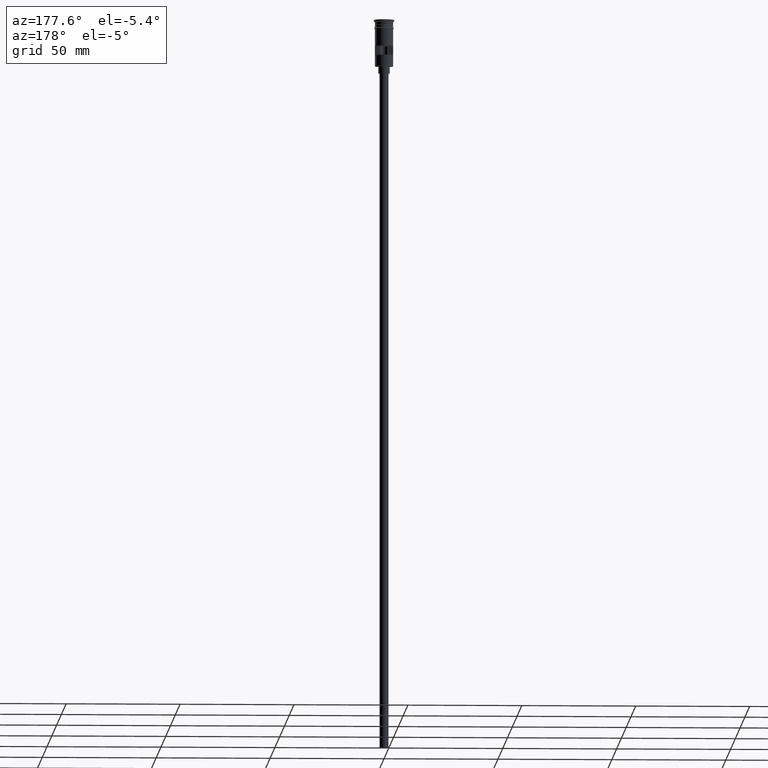
[diagram: clean part render]
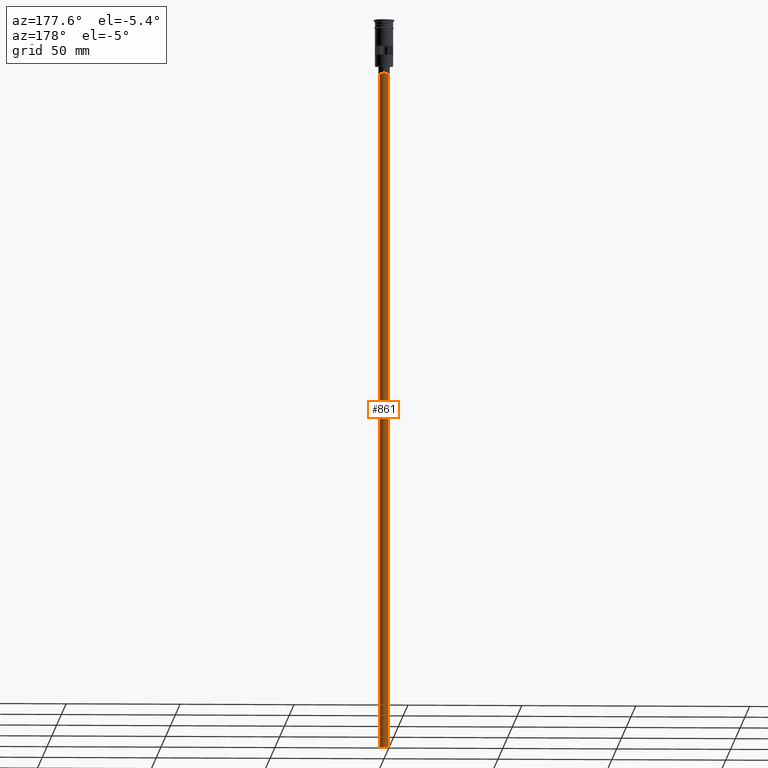
[diagram: same view with one face highlighted and labeled with its STEP entity id]
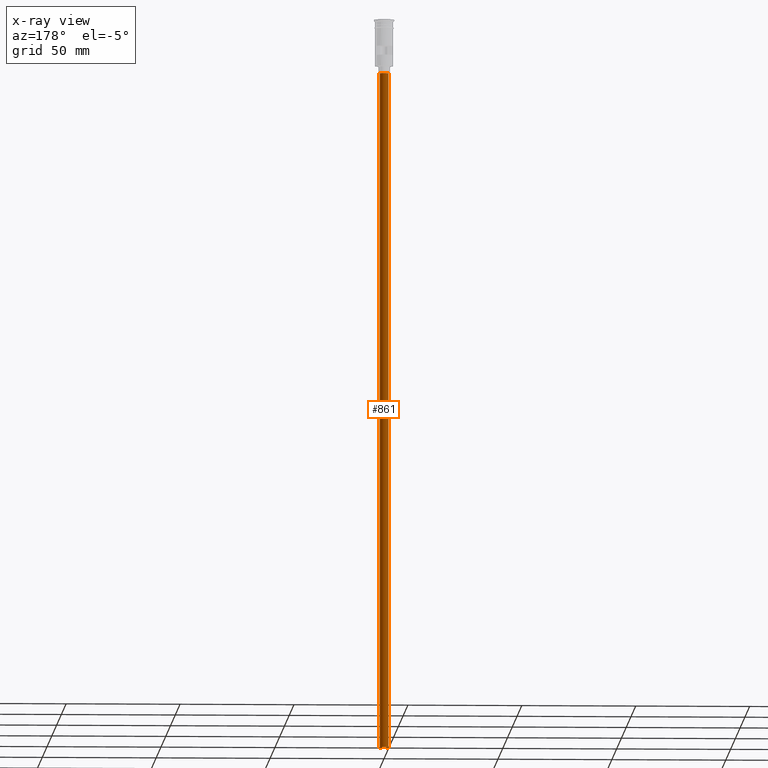
[diagram: x-ray of the same camera — body ghosted, the highlighted face saturated]
A machine part, auxiliary view. The second image highlights one B-rep face of the part: STEP entity #861.
The next image is the same camera in x-ray: the body ghosted, the highlighted face saturated — about 0% of this face is hidden behind the body in this view.
In plain terms, the highlighted cylindrical surface (edge-blend (fillet) strip) has radius 2 mm, axis along (-0, -0, 1).
Its self-contained STEP definition (entity closure, byte-faithful):
#4 = AXIS2_PLACEMENT_3D ( 'NONE', #507, #1009, #1496 ) ;
#23 = DIRECTION ( 'NONE',  ( -1.000000000000000000, 0.000000000000000000, 0.000000000000000000 ) ) ;
#96 = CARTESIAN_POINT ( 'NONE',  ( 0.000000000000000000, 0.000000000000000000, -320.5000000000000000 ) ) ;
#159 = ORIENTED_EDGE ( 'NONE', *, *, #950, .T. ) ;
#215 = VERTEX_POINT ( 'NONE', #575 ) ;
#239 = CIRCLE ( 'NONE', #4, 2.000000000000000000 ) ;
#270 = DIRECTION ( 'NONE',  ( 0.000000000000000000, 0.000000000000000000, -1.000000000000000000 ) ) ;
#295 = VERTEX_POINT ( 'NONE', #307 ) ;
#307 = CARTESIAN_POINT ( 'NONE',  ( 2.000000000000000000, 0.000000000000000000, -23.49999999999999645 ) ) ;
#309 = ORIENTED_EDGE ( 'NONE', *, *, #670, .T. ) ;
#449 = CARTESIAN_POINT ( 'NONE',  ( 2.000000000000000000, 0.000000000000000000, -320.5000000000000000 ) ) ;
#507 = CARTESIAN_POINT ( 'NONE',  ( 0.000000000000000000, 0.000000000000000000, -320.5000000000000000 ) ) ;
#547 = LINE ( 'NONE', #1414, #1014 ) ;
#575 = CARTESIAN_POINT ( 'NONE',  ( -2.000000000000000000, 2.449293598294706414E-16, -23.49999999999999645 ) ) ;
#670 = EDGE_CURVE ( 'NONE', #1394, #215, #547, .T. ) ;
#696 = ORIENTED_EDGE ( 'NONE', *, *, #981, .F. ) ;
#704 = CIRCLE ( 'NONE', #919, 2.000000000000000000 ) ;
#715 = CYLINDRICAL_SURFACE ( 'NONE', #1047, 2.000000000000000000 ) ;
#730 = EDGE_LOOP ( 'NONE', ( #696, #309, #159, #834 ) ) ;
#756 = CARTESIAN_POINT ( 'NONE',  ( 0.000000000000000000, 0.000000000000000000, -23.49999999999999645 ) ) ;
#798 = DIRECTION ( 'NONE',  ( -0.000000000000000000, -0.000000000000000000, 1.000000000000000000 ) ) ;
#834 = ORIENTED_EDGE ( 'NONE', *, *, #1312, .F. ) ;
#843 = DIRECTION ( 'NONE',  ( -0.000000000000000000, -0.000000000000000000, 1.000000000000000000 ) ) ;
#861 = ADVANCED_FACE ( 'NONE', ( #958 ), #715, .T. ) ;
#919 = AXIS2_PLACEMENT_3D ( 'NONE', #756, #270, #23 ) ;
#950 = EDGE_CURVE ( 'NONE', #215, #295, #704, .T. ) ;
#958 = FACE_OUTER_BOUND ( 'NONE', #730, .T. ) ;
#981 = EDGE_CURVE ( 'NONE', #1394, #1361, #239, .T. ) ;
#1009 = DIRECTION ( 'NONE',  ( 0.000000000000000000, 0.000000000000000000, -1.000000000000000000 ) ) ;
#1014 = VECTOR ( 'NONE', #798, 1000.000000000000000 ) ;
#1047 = AXIS2_PLACEMENT_3D ( 'NONE', #96, #843, #1092 ) ;
#1092 = DIRECTION ( 'NONE',  ( 1.000000000000000000, 0.000000000000000000, 0.000000000000000000 ) ) ;
#1098 = DIRECTION ( 'NONE',  ( -0.000000000000000000, -0.000000000000000000, 1.000000000000000000 ) ) ;
#1208 = CARTESIAN_POINT ( 'NONE',  ( -2.000000000000000000, 2.449293598294706414E-16, -320.5000000000000000 ) ) ;
#1312 = EDGE_CURVE ( 'NONE', #1361, #295, #1432, .T. ) ;
#1316 = CARTESIAN_POINT ( 'NONE',  ( 2.000000000000000000, 0.000000000000000000, -320.5000000000000000 ) ) ;
#1361 = VERTEX_POINT ( 'NONE', #449 ) ;
#1394 = VERTEX_POINT ( 'NONE', #1208 ) ;
#1414 = CARTESIAN_POINT ( 'NONE',  ( -2.000000000000000000, 2.449293598294706414E-16, -320.5000000000000000 ) ) ;
#1432 = LINE ( 'NONE', #1316, #1439 ) ;
#1439 = VECTOR ( 'NONE', #1098, 1000.000000000000000 ) ;
#1496 = DIRECTION ( 'NONE',  ( -1.000000000000000000, 0.000000000000000000, 0.000000000000000000 ) ) ;